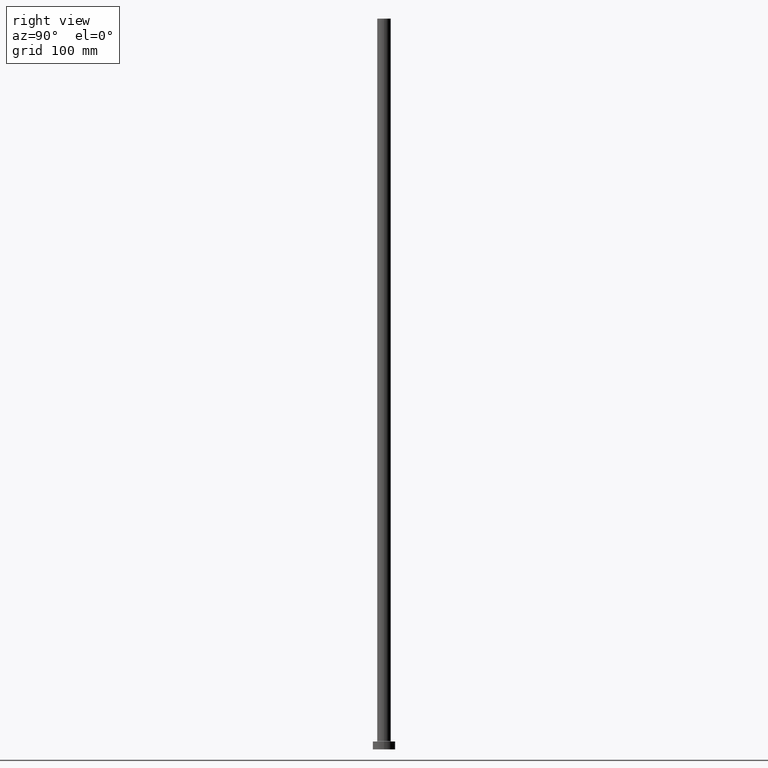
[diagram: clean part render]
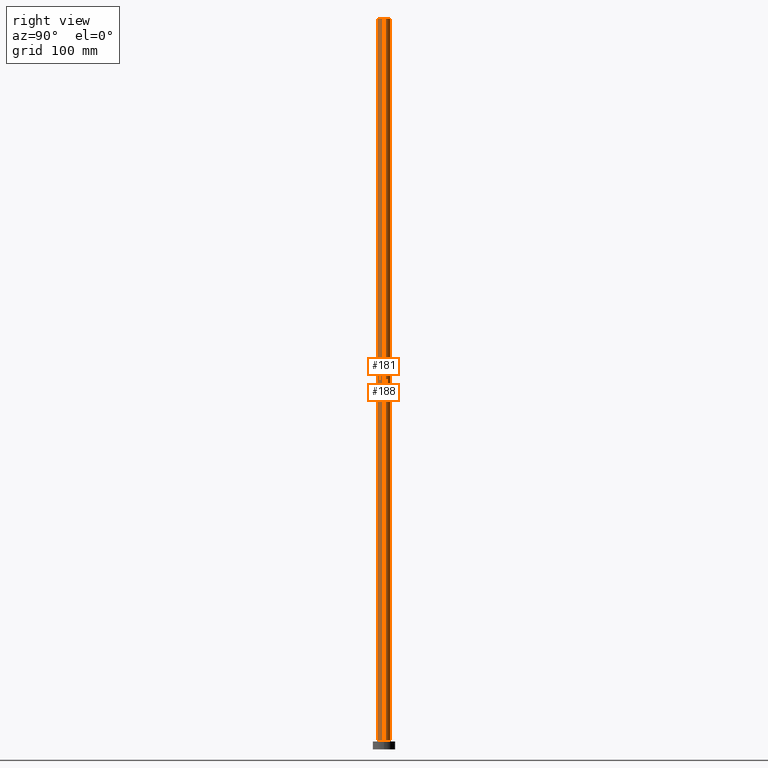
[diagram: same view with one multi-face feature highlighted, each face labeled with its STEP entity id]
A machine part, right view. The highlighted faces form ONE feature: a constant-radius fillet chain: 2 tangent blend faces with common blend radius 6 mm. The faces share edges in the B-rep.
Their STEP definitions:
[1] entity #181 (Cylinder):
#23 = ORIENTED_EDGE ( 'NONE', *, *, #253, .F. ) ;
#29 = AXIS2_PLACEMENT_3D ( 'NONE', #285, #434, #123 ) ;
#35 = DIRECTION ( 'NONE',  ( -1.000000000000000000, 0.000000000000000000, 0.000000000000000000 ) ) ;
#59 = CARTESIAN_POINT ( 'NONE',  ( -6.000000000000000888, 0.000000000000000000, 650.0000000000000000 ) ) ;
#71 = CARTESIAN_POINT ( 'NONE',  ( 0.000000000000000000, 0.000000000000000000, 650.0000000000000000 ) ) ;
#87 = DIRECTION ( 'NONE',  ( 1.000000000000000000, 0.000000000000000000, 0.000000000000000000 ) ) ;
#100 = VERTEX_POINT ( 'NONE', #59 ) ;
#123 = DIRECTION ( 'NONE',  ( 1.000000000000000000, 0.000000000000000000, 0.000000000000000000 ) ) ;
#124 = AXIS2_PLACEMENT_3D ( 'NONE', #159, #355, #87 ) ;
#159 = CARTESIAN_POINT ( 'NONE',  ( 0.000000000000000000, 0.000000000000000000, 7.700000000000040146 ) ) ;
#181 = ADVANCED_FACE ( 'NONE', ( #249 ), #281, .T. ) ;
#202 = CARTESIAN_POINT ( 'NONE',  ( -6.000000000000000888, 0.000000000000000000, 7.700000000000040146 ) ) ;
#208 = EDGE_LOOP ( 'NONE', ( #370, #23, #342, #346 ) ) ;
#216 = CARTESIAN_POINT ( 'NONE',  ( -6.000000000000000888, 0.000000000000000000, 650.0000000000000000 ) ) ;
#220 = CIRCLE ( 'NONE', #29, 6.000000000000000888 ) ;
#236 = LINE ( 'NONE', #443, #241 ) ;
#241 = VECTOR ( 'NONE', #371, 1000.000000000000000 ) ;
#249 = FACE_OUTER_BOUND ( 'NONE', #208, .T. ) ;
#253 = EDGE_CURVE ( 'NONE', #100, #367, #220, .T. ) ;
#266 = CARTESIAN_POINT ( 'NONE',  ( 6.000000000000000888, 7.347880794884120722E-16, 650.0000000000000000 ) ) ;
#268 = VERTEX_POINT ( 'NONE', #461 ) ;
#280 = AXIS2_PLACEMENT_3D ( 'NONE', #71, #420, #35 ) ;
#281 = CYLINDRICAL_SURFACE ( 'NONE', #280, 6.000000000000000888 ) ;
#285 = CARTESIAN_POINT ( 'NONE',  ( 0.000000000000000000, 0.000000000000000000, 650.0000000000000000 ) ) ;
#298 = VECTOR ( 'NONE', #377, 1000.000000000000000 ) ;
#314 = EDGE_CURVE ( 'NONE', #394, #268, #452, .T. ) ;
#340 = EDGE_CURVE ( 'NONE', #367, #268, #236, .T. ) ;
#342 = ORIENTED_EDGE ( 'NONE', *, *, #428, .T. ) ;
#346 = ORIENTED_EDGE ( 'NONE', *, *, #314, .T. ) ;
#355 = DIRECTION ( 'NONE',  ( 0.000000000000000000, 0.000000000000000000, 1.000000000000000000 ) ) ;
#367 = VERTEX_POINT ( 'NONE', #266 ) ;
#370 = ORIENTED_EDGE ( 'NONE', *, *, #340, .F. ) ;
#371 = DIRECTION ( 'NONE',  ( -0.000000000000000000, -0.000000000000000000, -1.000000000000000000 ) ) ;
#377 = DIRECTION ( 'NONE',  ( -0.000000000000000000, -0.000000000000000000, -1.000000000000000000 ) ) ;
#394 = VERTEX_POINT ( 'NONE', #202 ) ;
#416 = LINE ( 'NONE', #216, #298 ) ;
#420 = DIRECTION ( 'NONE',  ( -0.000000000000000000, -0.000000000000000000, -1.000000000000000000 ) ) ;
#428 = EDGE_CURVE ( 'NONE', #100, #394, #416, .T. ) ;
#434 = DIRECTION ( 'NONE',  ( 0.000000000000000000, 0.000000000000000000, 1.000000000000000000 ) ) ;
#443 = CARTESIAN_POINT ( 'NONE',  ( 6.000000000000000888, 7.347880794884120722E-16, 650.0000000000000000 ) ) ;
#452 = CIRCLE ( 'NONE', #124, 6.000000000000000888 ) ;
#461 = CARTESIAN_POINT ( 'NONE',  ( 6.000000000000000888, 7.347880794884120722E-16, 7.700000000000040146 ) ) ;
[2] entity #188 (Cylinder):
#9 = DIRECTION ( 'NONE',  ( 1.000000000000000000, 0.000000000000000000, 0.000000000000000000 ) ) ;
#15 = DIRECTION ( 'NONE',  ( 1.000000000000000000, 0.000000000000000000, 0.000000000000000000 ) ) ;
#25 = CARTESIAN_POINT ( 'NONE',  ( 0.000000000000000000, 0.000000000000000000, 650.0000000000000000 ) ) ;
#33 = ORIENTED_EDGE ( 'NONE', *, *, #428, .F. ) ;
#59 = CARTESIAN_POINT ( 'NONE',  ( -6.000000000000000888, 0.000000000000000000, 650.0000000000000000 ) ) ;
#77 = FACE_OUTER_BOUND ( 'NONE', #145, .T. ) ;
#100 = VERTEX_POINT ( 'NONE', #59 ) ;
#145 = EDGE_LOOP ( 'NONE', ( #344, #274, #148, #33 ) ) ;
#148 = ORIENTED_EDGE ( 'NONE', *, *, #260, .T. ) ;
#188 = ADVANCED_FACE ( 'NONE', ( #77 ), #211, .T. ) ;
#202 = CARTESIAN_POINT ( 'NONE',  ( -6.000000000000000888, 0.000000000000000000, 7.700000000000040146 ) ) ;
#206 = AXIS2_PLACEMENT_3D ( 'NONE', #321, #326, #9 ) ;
#211 = CYLINDRICAL_SURFACE ( 'NONE', #248, 6.000000000000000888 ) ;
#216 = CARTESIAN_POINT ( 'NONE',  ( -6.000000000000000888, 0.000000000000000000, 650.0000000000000000 ) ) ;
#225 = CARTESIAN_POINT ( 'NONE',  ( 0.000000000000000000, 0.000000000000000000, 650.0000000000000000 ) ) ;
#236 = LINE ( 'NONE', #443, #241 ) ;
#241 = VECTOR ( 'NONE', #371, 1000.000000000000000 ) ;
#248 = AXIS2_PLACEMENT_3D ( 'NONE', #25, #307, #447 ) ;
#260 = EDGE_CURVE ( 'NONE', #268, #394, #451, .T. ) ;
#266 = CARTESIAN_POINT ( 'NONE',  ( 6.000000000000000888, 7.347880794884120722E-16, 650.0000000000000000 ) ) ;
#268 = VERTEX_POINT ( 'NONE', #461 ) ;
#270 = DIRECTION ( 'NONE',  ( 0.000000000000000000, 0.000000000000000000, 1.000000000000000000 ) ) ;
#274 = ORIENTED_EDGE ( 'NONE', *, *, #340, .T. ) ;
#298 = VECTOR ( 'NONE', #377, 1000.000000000000000 ) ;
#307 = DIRECTION ( 'NONE',  ( -0.000000000000000000, -0.000000000000000000, -1.000000000000000000 ) ) ;
#308 = CIRCLE ( 'NONE', #437, 6.000000000000000888 ) ;
#321 = CARTESIAN_POINT ( 'NONE',  ( 0.000000000000000000, 0.000000000000000000, 7.700000000000040146 ) ) ;
#326 = DIRECTION ( 'NONE',  ( 0.000000000000000000, 0.000000000000000000, 1.000000000000000000 ) ) ;
#329 = EDGE_CURVE ( 'NONE', #367, #100, #308, .T. ) ;
#340 = EDGE_CURVE ( 'NONE', #367, #268, #236, .T. ) ;
#344 = ORIENTED_EDGE ( 'NONE', *, *, #329, .F. ) ;
#367 = VERTEX_POINT ( 'NONE', #266 ) ;
#371 = DIRECTION ( 'NONE',  ( -0.000000000000000000, -0.000000000000000000, -1.000000000000000000 ) ) ;
#377 = DIRECTION ( 'NONE',  ( -0.000000000000000000, -0.000000000000000000, -1.000000000000000000 ) ) ;
#394 = VERTEX_POINT ( 'NONE', #202 ) ;
#416 = LINE ( 'NONE', #216, #298 ) ;
#428 = EDGE_CURVE ( 'NONE', #100, #394, #416, .T. ) ;
#437 = AXIS2_PLACEMENT_3D ( 'NONE', #225, #270, #15 ) ;
#443 = CARTESIAN_POINT ( 'NONE',  ( 6.000000000000000888, 7.347880794884120722E-16, 650.0000000000000000 ) ) ;
#447 = DIRECTION ( 'NONE',  ( -1.000000000000000000, 0.000000000000000000, 0.000000000000000000 ) ) ;
#451 = CIRCLE ( 'NONE', #206, 6.000000000000000888 ) ;
#461 = CARTESIAN_POINT ( 'NONE',  ( 6.000000000000000888, 7.347880794884120722E-16, 7.700000000000040146 ) ) ;